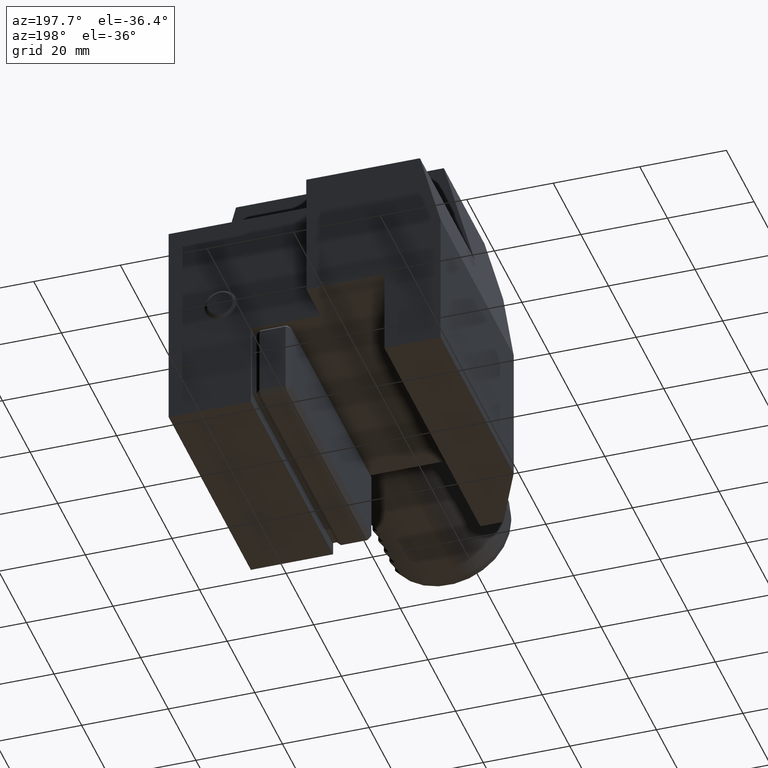
[diagram: clean part render]
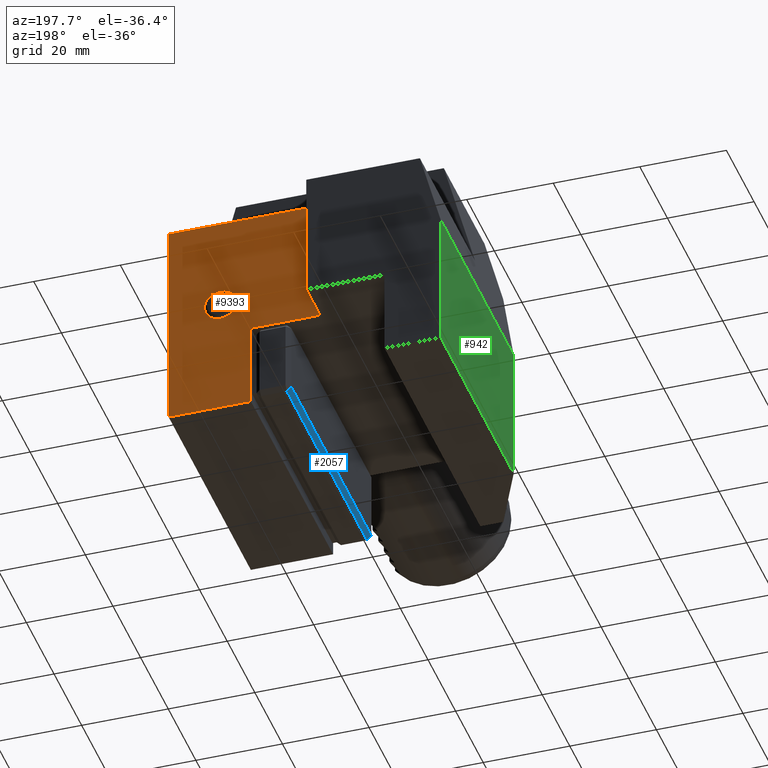
[diagram: same view with three faces highlighted in distinct colors, each labeled with its STEP entity id]
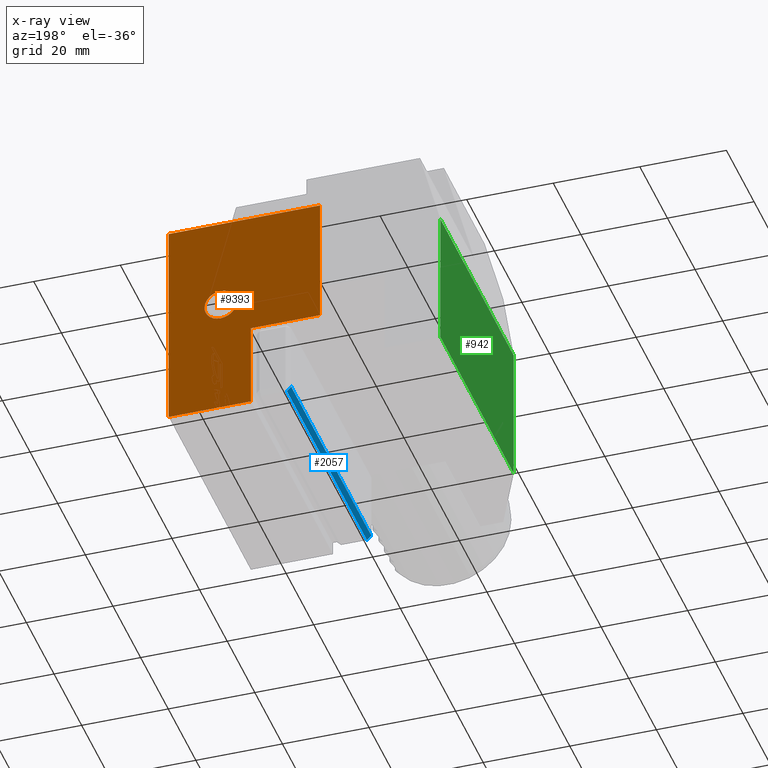
[diagram: x-ray of the same camera — body ghosted, the three highlighted faces saturated]
A machine part, auxiliary view with three faces highlighted in distinct colors.
The next image is the same camera in x-ray (body ghosted, the three faces saturated) — at least one of them is partly hidden behind the body in this view.
Their STEP definitions:

[orange] entity #9393 — the highlighted planar face has unit normal (0, 1, 0).
#202 = EDGE_CURVE ( 'NONE', #9804, #15032, #10752, .T. ) ;
#518 = CARTESIAN_POINT ( 'NONE',  ( 8.999999999999994671, 60.00000000000000711, -22.99999999999999645 ) ) ;
#673 = CARTESIAN_POINT ( 'NONE',  ( 1.255391989193741665E-15, 60.00000000000000711, -2.548342952189104166E-18 ) ) ;
#723 = ORIENTED_EDGE ( 'NONE', *, *, #7006, .T. ) ;
#779 = VECTOR ( 'NONE', #5159, 1000.000000000000000 ) ;
#1008 = EDGE_CURVE ( 'NONE', #11394, #15229, #3971, .T. ) ;
#1042 = CARTESIAN_POINT ( 'NONE',  ( -7.000000000000007994, 60.00000000000000711, -23.00000000000000000 ) ) ;
#1135 = CARTESIAN_POINT ( 'NONE',  ( 1.255391989193741665E-15, 60.00000000000000711, 7.000000000000008882 ) ) ;
#1223 = EDGE_CURVE ( 'NONE', #12672, #5004, #5221, .T. ) ;
#1293 = ORIENTED_EDGE ( 'NONE', *, *, #14714, .T. ) ;
#2194 = CARTESIAN_POINT ( 'NONE',  ( 27.99999999999999645, 60.00000000000000711, -43.00000000000000000 ) ) ;
#3309 = DIRECTION ( 'NONE',  ( 8.673617379884036705E-17, -0.000000000000000000, 1.000000000000000000 ) ) ;
#3723 = EDGE_LOOP ( 'NONE', ( #723 ) ) ;
#3850 = CARTESIAN_POINT ( 'NONE',  ( 27.99999999999999645, 60.00000000000000711, 7.000000000000006217 ) ) ;
#3868 = DIRECTION ( 'NONE',  ( -0.000000000000000000, -1.000000000000000000, -0.000000000000000000 ) ) ;
#3971 = LINE ( 'NONE', #9046, #779 ) ;
#4259 = FACE_BOUND ( 'NONE', #3723, .T. ) ;
#4331 = LINE ( 'NONE', #5431, #12994 ) ;
#4818 = LINE ( 'NONE', #9884, #13270 ) ;
#5004 = VERTEX_POINT ( 'NONE', #5626 ) ;
#5159 = DIRECTION ( 'NONE',  ( -1.000000000000000000, 0.000000000000000000, 0.000000000000000000 ) ) ;
#5221 = LINE ( 'NONE', #1135, #8490 ) ;
#5240 = AXIS2_PLACEMENT_3D ( 'NONE', #673, #13131, #7002 ) ;
#5428 = EDGE_CURVE ( 'NONE', #12672, #11394, #4331, .T. ) ;
#5431 = CARTESIAN_POINT ( 'NONE',  ( 27.99999999999999645, 60.00000000000000711, 11.60769515458679635 ) ) ;
#5604 = EDGE_CURVE ( 'NONE', #15032, #5004, #4818, .T. ) ;
#5626 = CARTESIAN_POINT ( 'NONE',  ( -7.000000000000007994, 60.00000000000000711, 7.000000000000008882 ) ) ;
#5663 = CARTESIAN_POINT ( 'NONE',  ( 8.999999999999992895, 60.00000000000000711, -43.00000000000000000 ) ) ;
#5740 = EDGE_LOOP ( 'NONE', ( #14639, #14017, #14888, #1293, #12861, #16389 ) ) ;
#6058 = VECTOR ( 'NONE', #15718, 1000.000000000000000 ) ;
#6484 = AXIS2_PLACEMENT_3D ( 'NONE', #8765, #3868, #11276 ) ;
#7002 = DIRECTION ( 'NONE',  ( 0.000000000000000000, -0.000000000000000000, 1.000000000000000000 ) ) ;
#7006 = EDGE_CURVE ( 'NONE', #10060, #10060, #14950, .T. ) ;
#7981 = DIRECTION ( 'NONE',  ( 0.000000000000000000, 0.000000000000000000, -1.000000000000000000 ) ) ;
#8490 = VECTOR ( 'NONE', #12752, 1000.000000000000000 ) ;
#8765 = CARTESIAN_POINT ( 'NONE',  ( 16.00000000000000000, 60.00000000000000711, -15.00000000000000000 ) ) ;
#9046 = CARTESIAN_POINT ( 'NONE',  ( 27.99999999999999645, 60.00000000000000711, -43.00000000000000000 ) ) ;
#9393 = ADVANCED_FACE ( 'Defeature completata2_78', ( #4259, #15562 ), #10576, .T. ) ;
#9804 = VERTEX_POINT ( 'NONE', #518 ) ;
#9884 = CARTESIAN_POINT ( 'NONE',  ( -7.000000000000007105, 60.00000000000000711, 40.00000000000001421 ) ) ;
#10060 = VERTEX_POINT ( 'NONE', #15124 ) ;
#10576 = PLANE ( 'NONE',  #5240 ) ;
#10668 = CARTESIAN_POINT ( 'NONE',  ( 8.999999999999992895, 60.00000000000000711, -22.99999999999999645 ) ) ;
#10752 = LINE ( 'NONE', #10668, #6058 ) ;
#11276 = DIRECTION ( 'NONE',  ( 0.000000000000000000, 0.000000000000000000, 1.000000000000000000 ) ) ;
#11394 = VERTEX_POINT ( 'NONE', #2194 ) ;
#11461 = CARTESIAN_POINT ( 'NONE',  ( 8.999999999999994671, 60.00000000000000711, -43.00000000000000000 ) ) ;
#11976 = LINE ( 'NONE', #5663, #14464 ) ;
#12672 = VERTEX_POINT ( 'NONE', #3850 ) ;
#12752 = DIRECTION ( 'NONE',  ( -1.000000000000000000, 0.000000000000000000, 1.123555394274131382E-32 ) ) ;
#12861 = ORIENTED_EDGE ( 'NONE', *, *, #202, .T. ) ;
#12994 = VECTOR ( 'NONE', #7981, 1000.000000000000000 ) ;
#13131 = DIRECTION ( 'NONE',  ( 0.000000000000000000, 1.000000000000000000, 0.000000000000000000 ) ) ;
#13270 = VECTOR ( 'NONE', #16293, 1000.000000000000000 ) ;
#14017 = ORIENTED_EDGE ( 'NONE', *, *, #5428, .T. ) ;
#14464 = VECTOR ( 'NONE', #3309, 1000.000000000000000 ) ;
#14639 = ORIENTED_EDGE ( 'NONE', *, *, #1223, .F. ) ;
#14714 = EDGE_CURVE ( 'NONE', #15229, #9804, #11976, .T. ) ;
#14888 = ORIENTED_EDGE ( 'NONE', *, *, #1008, .T. ) ;
#14950 = CIRCLE ( 'NONE', #6484, 3.717569088083501061 ) ;
#15032 = VERTEX_POINT ( 'NONE', #1042 ) ;
#15124 = CARTESIAN_POINT ( 'NONE',  ( 16.00000000000000000, 60.00000000000000711, -11.28243091191649761 ) ) ;
#15229 = VERTEX_POINT ( 'NONE', #11461 ) ;
#15562 = FACE_OUTER_BOUND ( 'NONE', #5740, .T. ) ;
#15718 = DIRECTION ( 'NONE',  ( -1.000000000000000000, 0.000000000000000000, 0.000000000000000000 ) ) ;
#16293 = DIRECTION ( 'NONE',  ( 9.637352644315593086E-18, -0.000000000000000000, 1.000000000000000000 ) ) ;
#16389 = ORIENTED_EDGE ( 'NONE', *, *, #5604, .T. ) ;

[blue] entity #2057 — the highlighted planar face has unit normal (0.7071, -0, 0.7071).
#694 = LINE ( 'NONE', #11102, #7952 ) ;
#1359 = EDGE_CURVE ( 'NONE', #14216, #3072, #694, .T. ) ;
#1963 = CARTESIAN_POINT ( 'NONE',  ( 0.9999999999999991118, 0.9999999999999904521, -41.29999999999997584 ) ) ;
#1993 = EDGE_LOOP ( 'NONE', ( #4505, #5032, #2089, #2433 ) ) ;
#2057 = ADVANCED_FACE ( 'Defeature completata1_20', ( #8178 ), #10687, .F. ) ;
#2089 = ORIENTED_EDGE ( 'NONE', *, *, #6633, .F. ) ;
#2433 = ORIENTED_EDGE ( 'NONE', *, *, #1359, .F. ) ;
#2464 = VECTOR ( 'NONE', #14328, 1000.000000000000000 ) ;
#3072 = VERTEX_POINT ( 'NONE', #4097 ) ;
#3310 = CARTESIAN_POINT ( 'NONE',  ( -8.673617379884035472E-15, 58.99999999999998579, -40.29999999999996874 ) ) ;
#3798 = CARTESIAN_POINT ( 'NONE',  ( 0.4999999999999952260, 0.9999999999999904521, -40.79999999999997584 ) ) ;
#4097 = CARTESIAN_POINT ( 'NONE',  ( -8.673617379884035472E-15, 0.9999999999999904521, -40.29999999999996874 ) ) ;
#4194 = DIRECTION ( 'NONE',  ( 0.7071067811865474617, -5.721084036286265615E-33, 0.7071067811865475727 ) ) ;
#4505 = ORIENTED_EDGE ( 'NONE', *, *, #6725, .T. ) ;
#4886 = CARTESIAN_POINT ( 'NONE',  ( 0.9999999999999991118, 58.99999999999998579, -41.29999999999997584 ) ) ;
#5032 = ORIENTED_EDGE ( 'NONE', *, *, #7779, .F. ) ;
#5699 = CARTESIAN_POINT ( 'NONE',  ( -8.673617379884035472E-15, 60.00000000000000000, -40.29999999999996874 ) ) ;
#6633 = EDGE_CURVE ( 'NONE', #3072, #8618, #16436, .T. ) ;
#6725 = EDGE_CURVE ( 'NONE', #14216, #15113, #6789, .T. ) ;
#6789 = LINE ( 'NONE', #15662, #2464 ) ;
#7507 = VECTOR ( 'NONE', #12839, 1000.000000000000000 ) ;
#7779 = EDGE_CURVE ( 'NONE', #8618, #15113, #14099, .T. ) ;
#7952 = VECTOR ( 'NONE', #10775, 1000.000000000000000 ) ;
#8178 = FACE_OUTER_BOUND ( 'NONE', #1993, .T. ) ;
#8618 = VERTEX_POINT ( 'NONE', #1963 ) ;
#9906 = DIRECTION ( 'NONE',  ( 8.090834635592245463E-33, 1.000000000000000000, 0.000000000000000000 ) ) ;
#10687 = PLANE ( 'NONE',  #12241 ) ;
#10775 = DIRECTION ( 'NONE',  ( -8.090834635592245463E-33, -1.000000000000000000, 0.000000000000000000 ) ) ;
#11102 = CARTESIAN_POINT ( 'NONE',  ( -8.673617379884035472E-15, 60.00000000000000000, -40.29999999999996874 ) ) ;
#12241 = AXIS2_PLACEMENT_3D ( 'NONE', #5699, #4194, #14562 ) ;
#12591 = VECTOR ( 'NONE', #9906, 1000.000000000000000 ) ;
#12839 = DIRECTION ( 'NONE',  ( 0.7071067811865474617, -5.721084036286266299E-33, -0.7071067811865475727 ) ) ;
#14099 = LINE ( 'NONE', #14799, #12591 ) ;
#14216 = VERTEX_POINT ( 'NONE', #3310 ) ;
#14328 = DIRECTION ( 'NONE',  ( 0.7071067811865474617, -5.721084036286266299E-33, -0.7071067811865475727 ) ) ;
#14562 = DIRECTION ( 'NONE',  ( -8.090834635592245463E-33, -1.000000000000000000, 0.000000000000000000 ) ) ;
#14799 = CARTESIAN_POINT ( 'NONE',  ( 0.9999999999999991118, 60.00000000000000000, -41.29999999999997584 ) ) ;
#15113 = VERTEX_POINT ( 'NONE', #4886 ) ;
#15662 = CARTESIAN_POINT ( 'NONE',  ( 0.9999999999999991118, 58.99999999999998579, -41.29999999999997584 ) ) ;
#16436 = LINE ( 'NONE', #3798, #7507 ) ;

[green] entity #942 — the highlighted planar face has unit normal (1, 0, -0).
#139 = CARTESIAN_POINT ( 'NONE',  ( -38.00000000000000711, 70.00000000000000000, -42.99999999999999289 ) ) ;
#148 = EDGE_CURVE ( 'NONE', #14802, #632, #5681, .T. ) ;
#229 = VECTOR ( 'NONE', #12238, 1000.000000000000000 ) ;
#253 = CARTESIAN_POINT ( 'NONE',  ( -38.00000000000000711, 16.99999999999999645, -10.78460969082636822 ) ) ;
#632 = VERTEX_POINT ( 'NONE', #253 ) ;
#942 = ADVANCED_FACE ( 'Defeature completata2_69', ( #1397 ), #12613, .F. ) ;
#1204 = LINE ( 'NONE', #139, #11956 ) ;
#1397 = FACE_OUTER_BOUND ( 'NONE', #2749, .T. ) ;
#2224 = VECTOR ( 'NONE', #2520, 1000.000000000000000 ) ;
#2520 = DIRECTION ( 'NONE',  ( 1.295371175675670527E-16, -1.000000000000000000, -0.000000000000000000 ) ) ;
#2749 = EDGE_LOOP ( 'NONE', ( #12658, #12260, #9680, #9179 ) ) ;
#5108 = EDGE_CURVE ( 'NONE', #14416, #14802, #1204, .T. ) ;
#5681 = LINE ( 'NONE', #7150, #229 ) ;
#6224 = DIRECTION ( 'NONE',  ( 1.000000000000000000, 1.295371175675670527E-16, -2.153906514033857855E-16 ) ) ;
#6272 = DIRECTION ( 'NONE',  ( 2.153906514033857855E-16, 0.000000000000000000, 1.000000000000000000 ) ) ;
#6370 = AXIS2_PLACEMENT_3D ( 'NONE', #11553, #6224, #10040 ) ;
#6721 = CARTESIAN_POINT ( 'NONE',  ( -38.00000000000000711, 70.00000000000000000, -42.99999999999999289 ) ) ;
#7150 = CARTESIAN_POINT ( 'NONE',  ( -38.00000000000000000, 70.00000000000000000, -10.78460969082636645 ) ) ;
#7444 = VERTEX_POINT ( 'NONE', #11103 ) ;
#8677 = EDGE_CURVE ( 'NONE', #14416, #7444, #11664, .T. ) ;
#8964 = EDGE_CURVE ( 'NONE', #632, #7444, #16269, .T. ) ;
#9179 = ORIENTED_EDGE ( 'NONE', *, *, #5108, .F. ) ;
#9680 = ORIENTED_EDGE ( 'NONE', *, *, #148, .F. ) ;
#10040 = DIRECTION ( 'NONE',  ( -2.153906514033857855E-16, 0.000000000000000000, -1.000000000000000000 ) ) ;
#10089 = CARTESIAN_POINT ( 'NONE',  ( -38.00000000000000711, 70.00000000000000000, -42.99999999999999289 ) ) ;
#11103 = CARTESIAN_POINT ( 'NONE',  ( -38.00000000000000711, 16.99999999999999645, -42.99999999999999289 ) ) ;
#11140 = CARTESIAN_POINT ( 'NONE',  ( -38.00000000000000000, 70.00000000000000000, -10.78460969082636645 ) ) ;
#11553 = CARTESIAN_POINT ( 'NONE',  ( -38.00000000000000711, 70.00000000000000000, -42.99999999999999289 ) ) ;
#11664 = LINE ( 'NONE', #10089, #2224 ) ;
#11956 = VECTOR ( 'NONE', #6272, 1000.000000000000000 ) ;
#12238 = DIRECTION ( 'NONE',  ( 1.295371175675670527E-16, -1.000000000000000000, -0.000000000000000000 ) ) ;
#12260 = ORIENTED_EDGE ( 'NONE', *, *, #8964, .F. ) ;
#12613 = PLANE ( 'NONE',  #6370 ) ;
#12658 = ORIENTED_EDGE ( 'NONE', *, *, #8677, .T. ) ;
#13913 = VECTOR ( 'NONE', #15009, 1000.000000000000000 ) ;
#13921 = CARTESIAN_POINT ( 'NONE',  ( -38.00000000000000711, 16.99999999999999645, 34.00000000000000711 ) ) ;
#14416 = VERTEX_POINT ( 'NONE', #6721 ) ;
#14802 = VERTEX_POINT ( 'NONE', #11140 ) ;
#15009 = DIRECTION ( 'NONE',  ( -0.000000000000000000, -0.000000000000000000, -1.000000000000000000 ) ) ;
#16269 = LINE ( 'NONE', #13921, #13913 ) ;